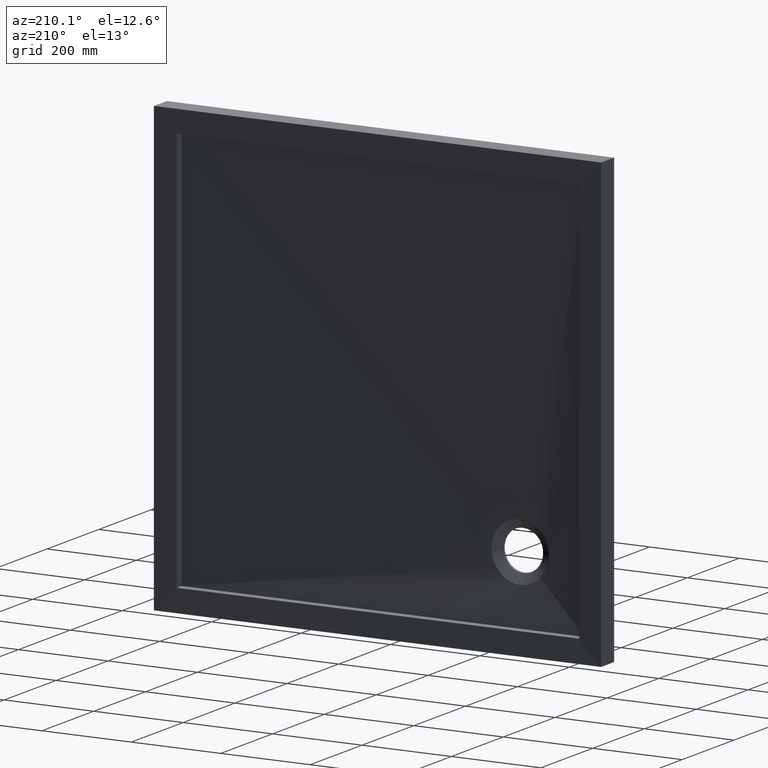
[diagram: clean part render]
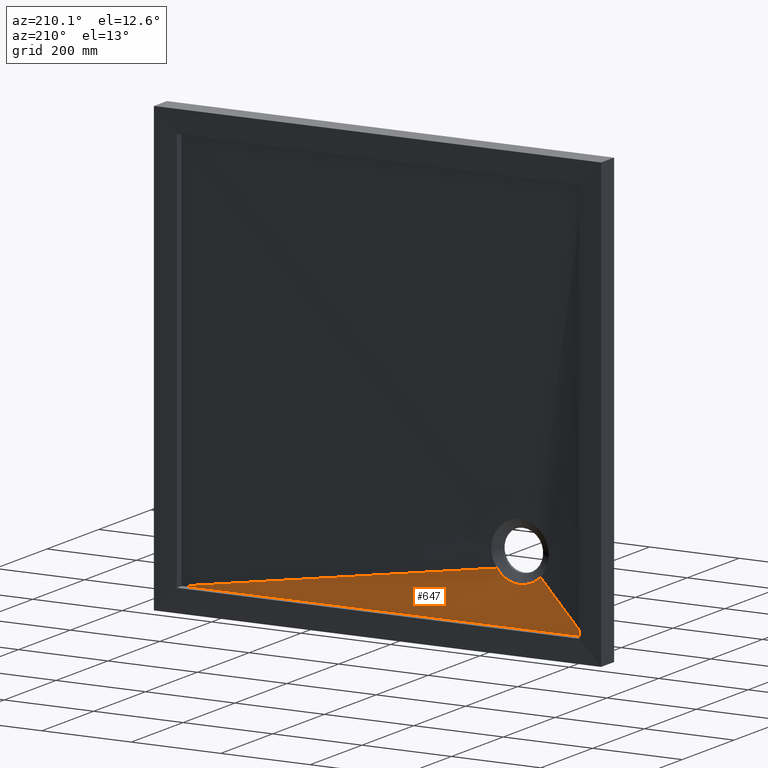
[diagram: same view with one face highlighted and labeled with its STEP entity id]
A machine part, auxiliary view. The second image highlights one B-rep face of the part: STEP entity #647.
In plain terms, the highlighted face is a freeform B-spline surface patch.
Its self-contained STEP definition (entity closure, byte-faithful):
#3 = ORIENTED_EDGE ( 'NONE', *, *, #942, .F. ) ;
#4 = VECTOR ( 'NONE', #292, 1000.000000000000000 ) ;
#27 = CARTESIAN_POINT ( 'NONE',  ( -316.8805454765158100, 19.07738437016821800, -362.9137915172123000 ) ) ;
#58 = EDGE_LOOP ( 'NONE', ( #864, #657, #710, #3, #196, #128 ) ) ;
#59 = CARTESIAN_POINT ( 'NONE',  ( -248.2853138542001300, 17.26308587154314400, -338.5603925686425600 ) ) ;
#102 = CARTESIAN_POINT ( 'NONE',  ( -393.0312229202571100, 23.00000000000000000, -393.0312229202569900 ) ) ;
#128 = ORIENTED_EDGE ( 'NONE', *, *, #217, .F. ) ;
#134 = CARTESIAN_POINT ( 'NONE',  ( 74.99999999999920400, 29.00000000000000400, -449.9999999999999400 ) ) ;
#135 = CARTESIAN_POINT ( 'NONE',  ( -150.0000000000001400, 28.99999999999947100, -450.0000000000000000 ) ) ;
#137 = CARTESIAN_POINT ( 'NONE',  ( -262.5000000000005700, 29.00000000000000400, -449.9999999999999400 ) ) ;
#141 = LINE ( 'NONE', #285, #4 ) ;
#146 = CARTESIAN_POINT ( 'NONE',  ( -317.1577413017159300, 17.00000000000000700, -348.1457094635766800 ) ) ;
#149 = CARTESIAN_POINT ( 'NONE',  ( -75.00000000000079600, 29.00000000000000400, -449.9999999999999400 ) ) ;
#151 = VERTEX_POINT ( 'NONE', #502 ) ;
#153 = CARTESIAN_POINT ( 'NONE',  ( -248.2853138542001300, 17.26308587154314400, -338.5603925686425600 ) ) ;
#156 = CARTESIAN_POINT ( 'NONE',  ( -268.4559292598893900, 16.99999999999999600, -340.2030057114422400 ) ) ;
#162 = CARTESIAN_POINT ( 'NONE',  ( -334.3591030140683000, 18.57219640852453700, -355.2172298038848900 ) ) ;
#185 = B_SPLINE_CURVE_WITH_KNOTS ( 'NONE', 3,
 ( #250, #135, #847, #706 ),
 .UNSPECIFIED., .F., .F.,
 ( 4, 4 ),
 ( 0.0000000000000000000, 1.000000000000000000 ),
 .UNSPECIFIED. ) ;
#188 = CARTESIAN_POINT ( 'NONE',  ( 412.4999999999998300, 29.00000000000000400, -449.9999999999999400 ) ) ;
#195 = CARTESIAN_POINT ( 'NONE',  ( -263.9375541594860100, 17.00000000000000000, -336.0624458405139900 ) ) ;
#196 = ORIENTED_EDGE ( 'NONE', *, *, #663, .F. ) ;
#197 = CARTESIAN_POINT ( 'NONE',  ( -286.1400715441738500, 17.00000000000000400, -349.2040332106619200 ) ) ;
#204 = CARTESIAN_POINT ( 'NONE',  ( -345.9619407771256200, 18.04262321686363900, -345.9619407771255100 ) ) ;
#207 = CARTESIAN_POINT ( 'NONE',  ( -281.8005379808187700, 18.45656079894654400, -362.4228621437305300 ) ) ;
#208 = VERTEX_POINT ( 'NONE', #958 ) ;
#214 = CARTESIAN_POINT ( 'NONE',  ( -37.50000000000080300, 29.00000000000000400, -449.9999999999999400 ) ) ;
#216 = CARTESIAN_POINT ( 'NONE',  ( 449.9999999999998900, 29.00000000000000000, -450.0000000000000000 ) ) ;
#217 = EDGE_CURVE ( 'NONE', #641, #208, #394, .T. ) ;
#218 = CARTESIAN_POINT ( 'NONE',  ( -293.3378253393858000, 18.92752285680871100, -364.7446394282196700 ) ) ;
#231 = CARTESIAN_POINT ( 'NONE',  ( -273.7473429988670500, 16.99999999999999600, -343.8418529201517800 ) ) ;
#233 = CARTESIAN_POINT ( 'NONE',  ( -329.7102310184882900, 18.74563669370537200, -357.8225198123735700 ) ) ;
#234 = CARTESIAN_POINT ( 'NONE',  ( -282.8422586982840700, 17.00000000000000400, -348.1457094635766800 ) ) ;
#240 = CARTESIAN_POINT ( 'NONE',  ( -326.2526570011329500, 16.99999999999999300, -343.8418529201517200 ) ) ;
#244 = CARTESIAN_POINT ( 'NONE',  ( 299.9999999999995500, 29.00000000000000400, -449.9999999999999400 ) ) ;
#250 = CARTESIAN_POINT ( 'NONE',  ( -450.0000000000001100, 29.00000000000000000, -450.0000000000000000 ) ) ;
#264 = CARTESIAN_POINT ( 'NONE',  ( -332.5368388612516200, 18.64461220996765100, -356.3109280283496800 ) ) ;
#276 = CARTESIAN_POINT ( 'NONE',  ( 262.4999999999994300, 29.00000000000000400, -449.9999999999999400 ) ) ;
#278 = DIRECTION ( 'NONE',  ( -0.7051540081587475100, 0.07426741920456142500, -0.7051540081587475100 ) ) ;
#282 = CARTESIAN_POINT ( 'NONE',  ( -289.1943457283440500, 18.78143068561812600, -364.1010229433205700 ) ) ;
#285 = CARTESIAN_POINT ( 'NONE',  ( 93.03122292025695100, 23.00000000000000000, -393.0312229202569900 ) ) ;
#292 = DIRECTION ( 'NONE',  ( -0.9873676604643323300, -0.01659586592208480600, 0.1575743643600921700 ) ) ;
#299 = VERTEX_POINT ( 'NONE', #686 ) ;
#300 = CARTESIAN_POINT ( 'NONE',  ( -253.5611653587251300, 17.34010507288831000, -344.9972390233697300 ) ) ;
#306 = CARTESIAN_POINT ( 'NONE',  ( -331.5440707401107300, 17.00000000000000400, -340.2030057114421900 ) ) ;
#314 = CARTESIAN_POINT ( 'NONE',  ( -259.5784649842573200, 17.46857510361255800, -350.7566073556899900 ) ) ;
#320 = B_SPLINE_CURVE_WITH_KNOTS ( 'NONE', 3,
 ( #153, #835, #465, #427, #300, #817, #801, #314, #882, #461 ),
 .UNSPECIFIED., .F., .F.,
 ( 4, 2, 2, 2, 4 ),
 ( 0.0000000000000000000, 0.004992632133181001300, 0.009985264266362002500, 0.01497789639954300400, 0.01997052853272400500 ),
 .UNSPECIFIED. ) ;
#377 = LINE ( 'NONE', #102, #963 ) ;
#379 = CARTESIAN_POINT ( 'NONE',  ( -310.6147619017491500, 19.12185037197543400, -364.1363551634054300 ) ) ;
#387 = CARTESIAN_POINT ( 'NONE',  ( 374.9999999999997200, 29.00000000000000400, -449.9999999999999400 ) ) ;
#389 = EDGE_CURVE ( 'NONE', #946, #641, #821, .T. ) ;
#394 = B_SPLINE_CURVE_WITH_KNOTS ( 'NONE', 3,
 ( #416, #715, #629, #528, #855, #379, #867, #27, #827, #836, #730, #551, #233, #264, #162, #624, #935, #204 ),
 .UNSPECIFIED., .F., .F.,
 ( 4, 2, 2, 2, 2, 2, 2, 2, 4 ),
 ( 0.04055077445615611800, 0.04698610368595657100, 0.05020376830085687700, 0.05342143291575719000, 0.06629209137535846400, 0.06950975599025878400, 0.07272742060515910400, 0.07916274983495988300, 0.09203340829456159400 ),
 .UNSPECIFIED. ) ;
#403 = CARTESIAN_POINT ( 'NONE',  ( -333.9374458405141000, 17.00000000000000000, -338.1874458405139900 ) ) ;
#412 = CARTESIAN_POINT ( 'NONE',  ( -336.0624458405141000, 17.00000000000000000, -336.0624458405139900 ) ) ;
#416 = CARTESIAN_POINT ( 'NONE',  ( -299.9999999999953400, 19.06192466930448900, -364.9999999999998900 ) ) ;
#427 = CARTESIAN_POINT ( 'NONE',  ( -252.4394842606662100, 17.32174236613222000, -343.7629602424930200 ) ) ;
#428 = CARTESIAN_POINT ( 'NONE',  ( -150.0000000000007400, 29.00000000000000400, -449.9999999999999400 ) ) ;
#429 = CARTESIAN_POINT ( 'NONE',  ( -296.4791847198287700, 17.00000000000000400, -351.0000000000001700 ) ) ;
#437 = CARTESIAN_POINT ( 'NONE',  ( -450.0000000000001100, 29.00000000000000000, -450.0000000000000000 ) ) ;
#446 = CARTESIAN_POINT ( 'NONE',  ( 149.9999999999992600, 29.00000000000000400, -449.9999999999999400 ) ) ;
#448 = CARTESIAN_POINT ( 'NONE',  ( -276.6456518568106700, 17.00000000000000400, -345.4639620923479100 ) ) ;
#451 = CARTESIAN_POINT ( 'NONE',  ( -278.5936220527506700, 18.28845230351237200, -361.3970774482168100 ) ) ;
#453 = CARTESIAN_POINT ( 'NONE',  ( -307.0408379386202600, 17.00000000000000400, -350.6316215631952700 ) ) ;
#461 = CARTESIAN_POINT ( 'NONE',  ( -262.1670623223307600, 17.54700538379253100, -352.8551684008062400 ) ) ;
#465 = CARTESIAN_POINT ( 'NONE',  ( -250.2919821533926100, 17.28945091728435200, -341.2199966649682200 ) ) ;
#478 = CARTESIAN_POINT ( 'NONE',  ( 37.49999999999920400, 29.00000000000000400, -449.9999999999999400 ) ) ;
#502 = CARTESIAN_POINT ( 'NONE',  ( -450.0000000000001100, 29.00000000000000000, -450.0000000000000000 ) ) ;
#514 = CARTESIAN_POINT ( 'NONE',  ( -303.5208152801713500, 17.00000000000000000, -351.0000000000001700 ) ) ;
#528 = CARTESIAN_POINT ( 'NONE',  ( -307.4303447956389700, 19.12554948496556400, -364.5827506072503800 ) ) ;
#536 = CARTESIAN_POINT ( 'NONE',  ( -272.3431760207572600, 17.95123650857814100, -358.8468569538753700 ) ) ;
#541 = CARTESIAN_POINT ( 'NONE',  ( -187.5000000000007100, 29.00000000000000400, -449.9999999999999400 ) ) ;
#544 = CARTESIAN_POINT ( 'NONE',  ( -273.8809140916048900, 18.03203586634101900, -359.5453031924140000 ) ) ;
#551 = CARTESIAN_POINT ( 'NONE',  ( -328.7500002883263600, 18.77812225729142200, -358.3059263784751400 ) ) ;
#554 = CARTESIAN_POINT ( 'NONE',  ( -375.0000000000003400, 29.00000000000000000, -450.0000000000000000 ) ) ;
#568 = CARTESIAN_POINT ( 'NONE',  ( -292.9591620613797400, 17.00000000000000000, -350.6316215631953200 ) ) ;
#576 = CARTESIAN_POINT ( 'NONE',  ( -266.0625541594860700, 17.00000000000000400, -338.1874458405139900 ) ) ;
#579 = CARTESIAN_POINT ( 'NONE',  ( -283.4228244990155800, 18.53723589492916100, -362.8732178911934600 ) ) ;
#583 = CARTESIAN_POINT ( 'NONE',  ( -300.0000000000005100, 29.00000000000000000, -449.9999999999999400 ) ) ;
#590 = CARTESIAN_POINT ( 'NONE',  ( -277.0069690025053400, 18.20094824041810700, -360.8208048821691100 ) ) ;
#619 = CARTESIAN_POINT ( 'NONE',  ( -267.8151003355744700, 17.73426198883061700, -356.5733345089856800 ) ) ;
#624 = CARTESIAN_POINT ( 'NONE',  ( -339.6443379282073400, 18.34770114317361200, -351.6845061775737200 ) ) ;
#629 = CARTESIAN_POINT ( 'NONE',  ( -304.2402495589146300, 19.11418268602959000, -364.8967416963258200 ) ) ;
#640 = CARTESIAN_POINT ( 'NONE',  ( -412.5000000000002300, 29.00000000000000000, -450.0000000000000000 ) ) ;
#641 = VERTEX_POINT ( 'NONE', #729 ) ;
#642 = B_SPLINE_SURFACE_WITH_KNOTS ( 'NONE', 3, 1, ( 
 ( #437, #412 ),
 ( #640, #403 ),
 ( #554, #306 ),
 ( #583, #240 ),
 ( #137, #660 ),
 ( #541, #146 ),
 ( #428, #661 ),
 ( #149, #453 ),
 ( #214, #514 ),
 ( #478, #429 ),
 ( #134, #568 ),
 ( #446, #197 ),
 ( #875, #234 ),
 ( #276, #448 ),
 ( #244, #231 ),
 ( #387, #156 ),
 ( #188, #576 ),
 ( #216, #195 ) ),
 .UNSPECIFIED., .F., .F., .F.,
 ( 4, 2, 2, 2, 2, 2, 2, 2, 4 ),
 ( 2, 2 ),
 ( 0.0000000000000000000, 0.1250000000000000000, 0.2500000000000000000, 0.3750000000000000000, 0.5000000000000000000, 0.6250000000000000000, 0.7500000000000000000, 0.8750000000000000000, 1.000000000000000000 ),
 ( 0.0000000000000000000, 1.000000000000000000 ),
 .UNSPECIFIED. ) ;
#647 = ADVANCED_FACE ( 'NONE', ( #811 ), #642, .F. ) ;
#657 = ORIENTED_EDGE ( 'NONE', *, *, #834, .F. ) ;
#660 = CARTESIAN_POINT ( 'NONE',  ( -323.3543481431895500, 17.00000000000000700, -345.4639620923479100 ) ) ;
#661 = CARTESIAN_POINT ( 'NONE',  ( -313.8599284558261500, 17.00000000000000000, -349.2040332106619800 ) ) ;
#663 = EDGE_CURVE ( 'NONE', #208, #151, #377, .T. ) ;
#686 = CARTESIAN_POINT ( 'NONE',  ( 449.9999999999998900, 29.00000000000000000, -450.0000000000000000 ) ) ;
#689 = CARTESIAN_POINT ( 'NONE',  ( -264.9165293901036200, 17.62648718080832600, -354.8231957360529200 ) ) ;
#706 = CARTESIAN_POINT ( 'NONE',  ( 449.9999999999998900, 29.00000000000000000, -450.0000000000000000 ) ) ;
#710 = ORIENTED_EDGE ( 'NONE', *, *, #815, .F. ) ;
#715 = CARTESIAN_POINT ( 'NONE',  ( -302.1179558136791500, 19.09443924900507700, -365.0000000000000000 ) ) ;
#729 = CARTESIAN_POINT ( 'NONE',  ( -299.9999999999953400, 19.06192466930448900, -364.9999999999998900 ) ) ;
#730 = CARTESIAN_POINT ( 'NONE',  ( -326.8164672478234800, 18.83938033893469600, -359.2201034428118800 ) ) ;
#801 = CARTESIAN_POINT ( 'NONE',  ( -257.0933334921014600, 17.40843411261139200, -348.5350292239481300 ) ) ;
#811 = FACE_OUTER_BOUND ( 'NONE', #58, .T. ) ;
#815 = EDGE_CURVE ( 'NONE', #299, #831, #141, .T. ) ;
#817 = CARTESIAN_POINT ( 'NONE',  ( -255.8880844301372700, 17.38347573502308000, -347.3832588019668000 ) ) ;
#821 = B_SPLINE_CURVE_WITH_KNOTS ( 'NONE', 3,
 ( #915, #689, #619, #536, #544, #590, #451, #207, #579, #872, #893, #871, #282, #218, #885, #954 ),
 .UNSPECIFIED., .F., .F.,
 ( 4, 2, 2, 2, 2, 2, 2, 4 ),
 ( 1.570475735256964700E-016, 0.01013769361403918400, 0.01520654042105862100, 0.02027538722807805900, 0.02534423403509749500, 0.02787865743860723200, 0.03041308084211697200, 0.04055077445615611800 ),
 .UNSPECIFIED. ) ;
#827 = CARTESIAN_POINT ( 'NONE',  ( -320.9308335257117600, 19.00230430224070900, -361.6845269952490900 ) ) ;
#831 = VERTEX_POINT ( 'NONE', #59 ) ;
#834 = EDGE_CURVE ( 'NONE', #831, #946, #320, .T. ) ;
#835 = CARTESIAN_POINT ( 'NONE',  ( -249.2647632762093500, 17.27551244302440000, -339.9099732135990700 ) ) ;
#836 = CARTESIAN_POINT ( 'NONE',  ( -325.8419093035509500, 18.86820762686682300, -359.6517037892994600 ) ) ;
#847 = CARTESIAN_POINT ( 'NONE',  ( 149.9999999999999100, 28.99999999999947100, -450.0000000000000000 ) ) ;
#855 = CARTESIAN_POINT ( 'NONE',  ( -308.4977164934811100, 19.12628033407740700, -364.4510204595219400 ) ) ;
#864 = ORIENTED_EDGE ( 'NONE', *, *, #389, .F. ) ;
#867 = CARTESIAN_POINT ( 'NONE',  ( -311.6654587200020500, 19.11671201534161200, -363.9534846315501700 ) ) ;
#871 = CARTESIAN_POINT ( 'NONE',  ( -288.3663364218751300, 18.75012837921060100, -363.9559882622300500 ) ) ;
#872 = CARTESIAN_POINT ( 'NONE',  ( -285.8848811127785400, 18.64811990160767900, -363.4545072291605800 ) ) ;
#875 = CARTESIAN_POINT ( 'NONE',  ( 187.4999999999993500, 29.00000000000000400, -449.9999999999999400 ) ) ;
#882 = CARTESIAN_POINT ( 'NONE',  ( -260.8566865534143100, 17.50372999664394400, -351.8250430138493800 ) ) ;
#885 = CARTESIAN_POINT ( 'NONE',  ( -296.6635448847276300, 19.01070384823641000, -364.9999999999998900 ) ) ;
#893 = CARTESIAN_POINT ( 'NONE',  ( -286.7117084275461100, 18.68348330446403000, -363.6327892672711600 ) ) ;
#915 = CARTESIAN_POINT ( 'NONE',  ( -262.1670623223307600, 17.54700538379253100, -352.8551684008062400 ) ) ;
#933 = CARTESIAN_POINT ( 'NONE',  ( -262.1670623223307600, 17.54700538379253100, -352.8551684008062400 ) ) ;
#935 = CARTESIAN_POINT ( 'NONE',  ( -342.9275452846014200, 18.18848130398697200, -348.9963362696495300 ) ) ;
#942 = EDGE_CURVE ( 'NONE', #151, #299, #185, .T. ) ;
#946 = VERTEX_POINT ( 'NONE', #933 ) ;
#954 = CARTESIAN_POINT ( 'NONE',  ( -299.9999999999953400, 19.06192466930448900, -364.9999999999998900 ) ) ;
#958 = CARTESIAN_POINT ( 'NONE',  ( -345.9619407771256200, 18.04262321686363900, -345.9619407771255100 ) ) ;
#963 = VECTOR ( 'NONE', #278, 1000.000000000000000 ) ;